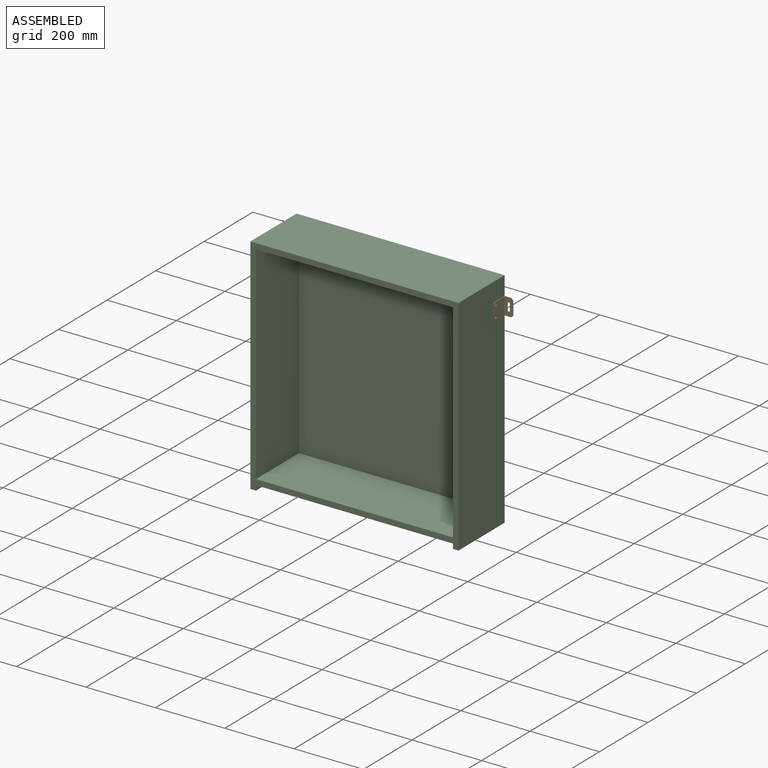
[diagram: assembled view]
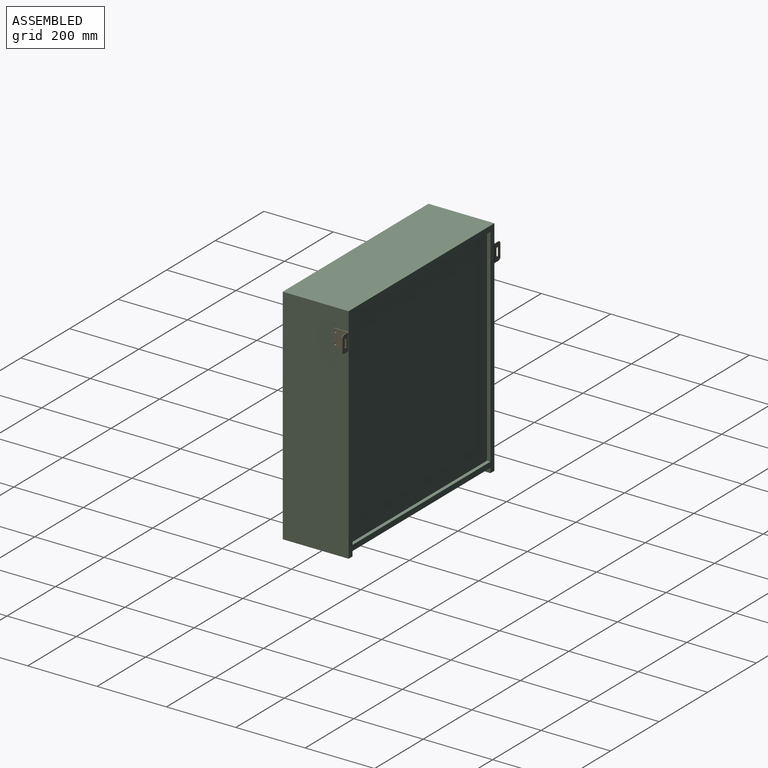
[diagram: assembled view, second angle]
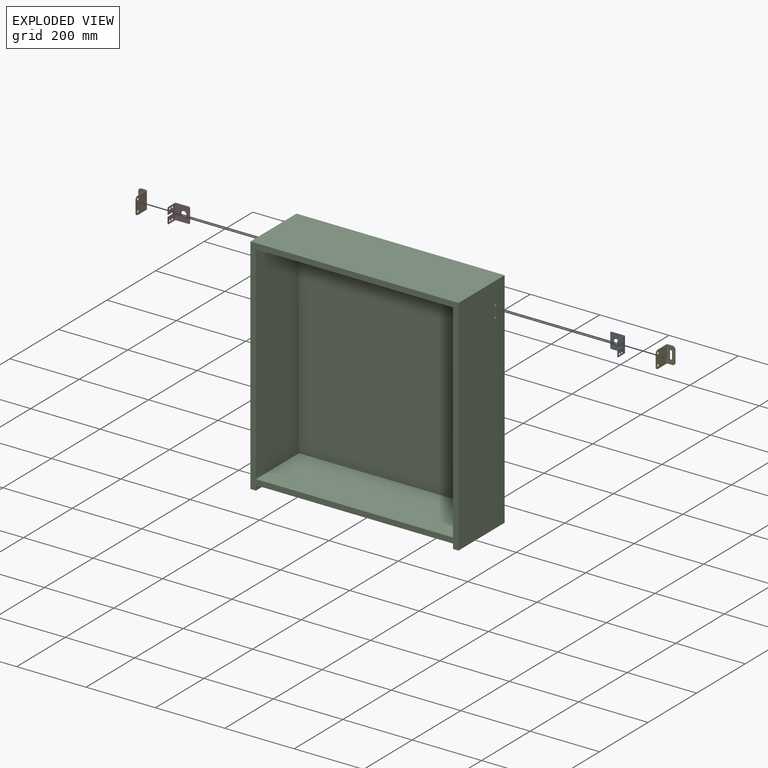
[diagram: exploded view]
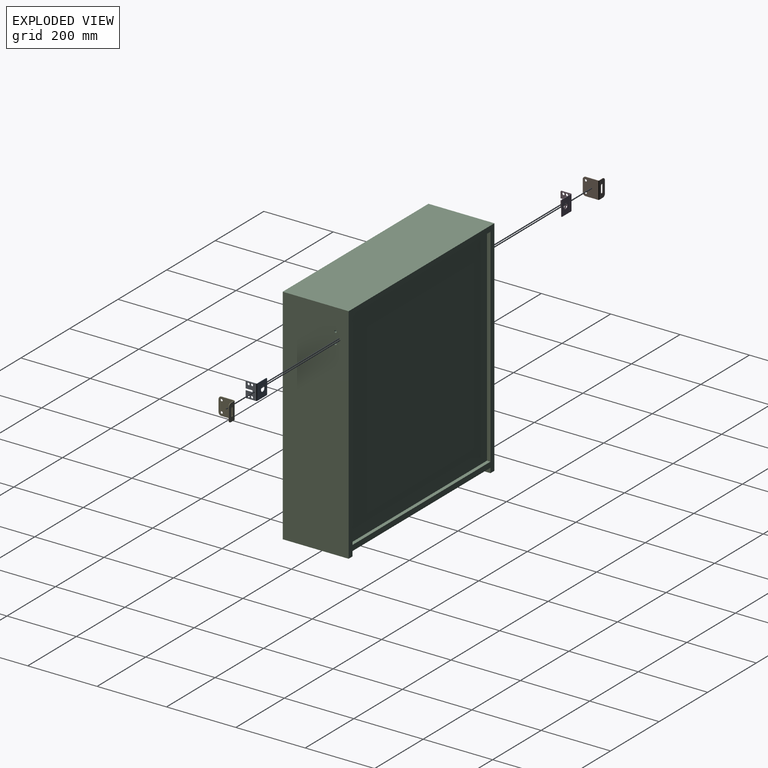
[diagram: exploded view, second angle]
ASSEMBLY  parts=5 mates=4
PART A: 27 faces, bbox 42.7x32x45 mm
  f0: plane 38.5x1.2mm, normal (0,0,1), area 46.2mm2, adj f4,f5,f7,f24
  f1: plane 41x1.2mm, normal (1,0,0), area 49.2mm2, adj f4,f5,f6,f7
  f2: cylinder r=7.5mm len=15mm, axis (0,-1,0), area 56.5mm2, adj f4,f5
  f3: plane 38.5x1.2mm, normal (0,0,-1), area 46.2mm2, adj f4,f5,f6,f23
  f4: plane 45x40.5mm, normal (0,1,0), area 1641.8mm2, adj f0,f1,f2,f3,f6,f7,f25
  f5: plane 45x40.5mm, normal (0,-1,0), area 1641.8mm2, adj f0,f1,f2,f3,f6,f7,f26
  f6: plane 2x2mm, normal (0.71,0,-0.71), area 3.4mm2, adj f1,f3,f4,f5
  f7: plane 2x2mm, normal (0.71,0,0.71), area 3.4mm2, adj f0,f1,f4,f5
  f8: plane 5x1.2mm, normal (0,-1,0), area 6mm2, adj f9,f18,f19,f20
  f9: plane 20x1.2mm, normal (0,0,-1), area 24mm2, adj f8,f10,f19,f20
  f10: plane 18x1.2mm, normal (0,-1,0), area 21.6mm2, adj f9,f19,f20,f21
  f11: plane 27.8x1.2mm, normal (0,0,1), area 33.4mm2, adj f19,f20,f21,f24
  f12: plane 27.8x1.2mm, normal (0,0,-1), area 33.4mm2, adj f19,f20,f22,f23
  f13: plane 18x1.2mm, normal (0,-1,0), area 21.6mm2, adj f18,f19,f20,f22
  f14: cylinder r=3.25mm len=6.5mm, axis (-1,0,0), area 24.5mm2, adj f19,f20
  f15: cylinder r=3.25mm len=6.5mm, axis (-1,0,0), area 24.5mm2, adj f19,f20
  f16: cylinder r=3.25mm len=6.5mm, axis (-1,0,0), area 24.5mm2, adj f19,f20
  f17: cylinder r=3.25mm len=6.5mm, axis (-1,0,0), area 24.5mm2, adj f19,f20
  f18: plane 20x1.2mm, normal (0,0,1), area 24mm2, adj f8,f13,f19,f20
  f19: plane 45x29.8mm, normal (-1,0,0), area 1104.3mm2, adj f8,f9,f10,f11,f12,f13,f14,f15
  f20: plane 45x29.8mm, normal (1,0,0), area 1104.3mm2, adj f8,f9,f10,f11,f12,f13,f14,f15
  f21: plane 2x2mm, normal (0,-0.71,0.71), area 3.4mm2, adj f10,f11,f19,f20
  f22: plane 2x2mm, normal (0,-0.71,-0.71), area 3.4mm2, adj f12,f13,f19,f20
  f23: plane 2.2x2.2mm, normal (0,0,-1), area 3mm2, adj f3,f12,f25,f26
  f24: plane 2.2x2.2mm, normal (0,0,1), area 3mm2, adj f0,f11,f25,f26
  f25: cylinder r=2.2mm len=45mm, axis (0,0,-1), area 155.5mm2, adj f4,f19,f23,f24
  f26: cylinder r=1mm len=45mm, axis (0,0,-1), area 70.7mm2, adj f5,f20,f23,f24
PART B: 24 faces, bbox 46.5x25x50 mm
  f0: plane 36x1.5mm, normal (0,0,-1), area 54mm2, adj f5,f6,f7,f20
  f1: plane 36x1.5mm, normal (0,0,1), area 54mm2, adj f5,f6,f8,f21
  f2: cylinder r=3.25mm len=6.5mm, axis (0,-1,0), area 30.6mm2, adj f5,f6
  f3: cylinder r=3.25mm len=6.5mm, axis (0,-1,0), area 30.6mm2, adj f5,f6
  f4: plane 34x1.5mm, normal (1,0,0), area 51mm2, adj f5,f6,f7,f8
  f5: plane 50x44mm, normal (0,1,0), area 2106.2mm2, adj f0,f1,f2,f3,f4,f7,f8,f22
  f6: plane 50x44mm, normal (0,-1,0), area 2106.2mm2, adj f0,f1,f2,f3,f4,f7,f8,f23
  f7: cylinder r=8mm len=8mm, axis (0,-1,0), area 18.8mm2, adj f0,f4,f5,f6
  f8: cylinder r=8mm len=8mm, axis (0,1,0), area 18.8mm2, adj f1,f4,f5,f6
  f9: plane 18x1.5mm, normal (0,1,0), area 27mm2, adj f10,f15,f16,f17
  f10: cylinder r=3.5mm len=7mm, axis (-1,0,0), area 16.5mm2, adj f9,f11,f16,f17
  f11: plane 18x1.5mm, normal (0,-1,0), area 27mm2, adj f10,f15,f16,f17
  f12: plane 34x1.5mm, normal (0,-1,0), area 51mm2, adj f16,f17,f18,f19
  f13: plane 14.5x1.5mm, normal (0,0,1), area 21.8mm2, adj f16,f17,f18,f21
  f14: plane 14.5x1.5mm, normal (0,0,-1), area 21.8mm2, adj f16,f17,f19,f20
  f15: cylinder r=3.5mm len=7mm, axis (-1,0,0), area 16.5mm2, adj f9,f11,f16,f17
  f16: plane 50x22.5mm, normal (-1,0,0), area 933mm2, adj f9,f10,f11,f12,f13,f14,f15,f18
  f17: plane 50x22.5mm, normal (1,0,0), area 933mm2, adj f9,f10,f11,f12,f13,f14,f15,f18
  f18: cylinder r=8mm len=8mm, axis (-1,0,0), area 18.8mm2, adj f12,f13,f16,f17
  f19: cylinder r=8mm len=8mm, axis (-1,0,0), area 18.8mm2, adj f12,f14,f16,f17
  f20: plane 2.5x2.5mm, normal (0,0,-1), area 4.1mm2, adj f0,f14,f22,f23
  f21: plane 2.5x2.5mm, normal (0,0,1), area 4.1mm2, adj f1,f13,f22,f23
  f22: cylinder r=2.5mm len=50mm, axis (0,0,-1), area 196.3mm2, adj f5,f16,f20,f21
  f23: cylinder r=1mm len=50mm, axis (0,0,-1), area 78.5mm2, adj f6,f17,f20,f21
PART C: 24 faces, bbox 600x190x645 mm
  f0: plane 568x10mm, normal (0,0,-1), area 5680mm2, adj f1,f3,f6,f19
  f1: plane 599x10mm, normal (-1,0,0), area 5990mm2, adj f0,f2,f6,f19
  f2: plane 568x10mm, normal (0,0,1), area 5680mm2, adj f1,f3,f6,f19
  f3: plane 599x10mm, normal (1,0,0), area 5990mm2, adj f0,f2,f6,f19
  f4: plane 190x16mm, normal (0,0,-1), area 3040mm2, adj f5,f6,f7,f16
  f5: plane 645x600mm, normal (0,-1,0), area 38816mm2, adj f4,f7,f8,f9,f10,f11,f12,f13
  f6: plane 645x600mm, normal (0,1,0), area 38816mm2, adj f0,f1,f2,f3,f4,f7,f8,f9
  f7: plane 645x190mm, normal (1,0,0), area 122483.6mm2, adj f4,f5,f6,f8,f22,f23
  f8: plane 600x190mm, normal (0,0,1), area 114000mm2, adj f5,f6,f7,f9
  f9: plane 645x190mm, normal (-1,0,0), area 122483.6mm2, adj f5,f6,f8,f10,f20,f21
  f10: plane 190x16mm, normal (0,0,-1), area 3040mm2, adj f5,f6,f9,f17
  f11: plane 568x177mm, normal (0,0,-1), area 100536mm2, adj f5,f12,f14,f18
  f12: plane 599x177mm, normal (-1,0,0), area 105956.6mm2, adj f5,f11,f13,f18,f22,f23
  f13: plane 568x177mm, normal (0,0,1), area 100536mm2, adj f5,f12,f14,f18
  f14: plane 599x177mm, normal (1,0,0), area 105956.6mm2, adj f5,f11,f13,f18,f20,f21
  f15: plane 568x190mm, normal (0,0,-1), area 107920mm2, adj f5,f6,f16,f17
  f16: plane 190x14mm, normal (-1,0,0), area 2660mm2, adj f4,f5,f6,f15
  f17: plane 190x14mm, normal (1,0,0), area 2660mm2, adj f5,f6,f10,f15
  f18: plane 599x568mm, normal (0,-1,0), area 340232mm2, adj f11,f12,f13,f14
  f19: plane 599x568mm, normal (0,1,0), area 340232mm2, adj f0,f1,f2,f3
  f20: cylinder r=3.25mm len=16mm, axis (1,0,0), area 326.7mm2, adj f9,f14
  f21: cylinder r=3.25mm len=16mm, axis (1,0,0), area 326.7mm2, adj f9,f14
  f22: cylinder r=3.25mm len=16mm, axis (1,0,0), area 326.7mm2, adj f7,f12
  f23: cylinder r=3.25mm len=16mm, axis (1,0,0), area 326.7mm2, adj f7,f12
PART D: same geometry as A
PART E: same geometry as B
PLACE A rot(axis=(0,-1,0),180deg) t=(262.05,80.75,243.5)mm
PLACE B rot(axis=(0,0,-1),90deg) t=(-300,71,243.5)mm
PLACE C at identity fixed
PLACE D t=(-262.05,80.75,243.5)mm
PLACE E rot(axis=(0.71,-0.71,0),180deg) t=(300,71,243.5)mm
MATE fastened B.f3 <-> C.f20  axis (1,0,0) through (-300,57,259.5)mm
MATE fastened C.f20 <-> D.f17  axis (1,0,0) through (-284,57,259.5)mm
MATE fastened A.f14 <-> C.f20  axis (1,0,0) through (284,57,259.5)mm
MATE fastened E.f2 <-> C.f20  axis (-1,0,0) through (300,57,259.5)mm
